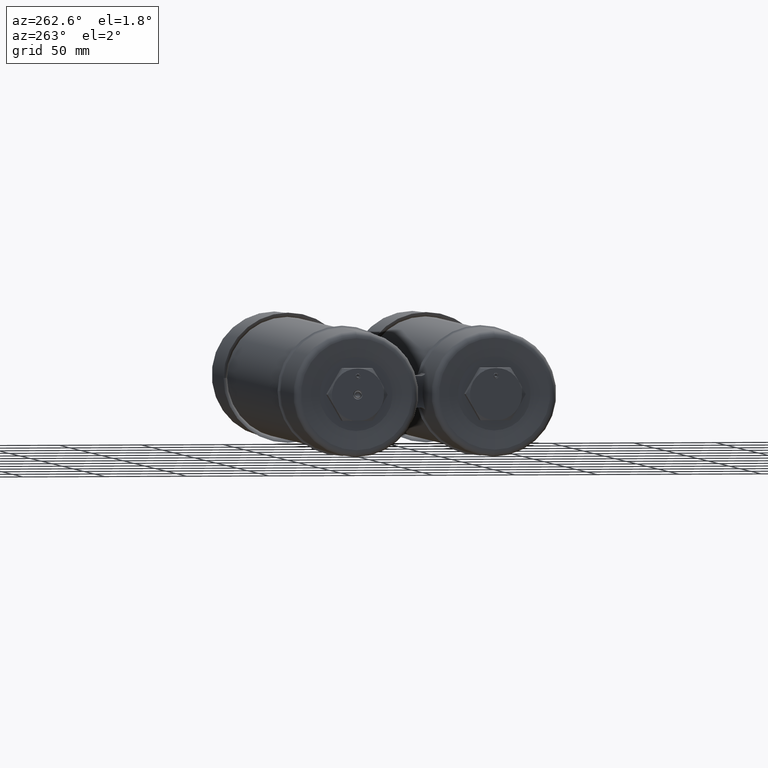
[diagram: clean part render]
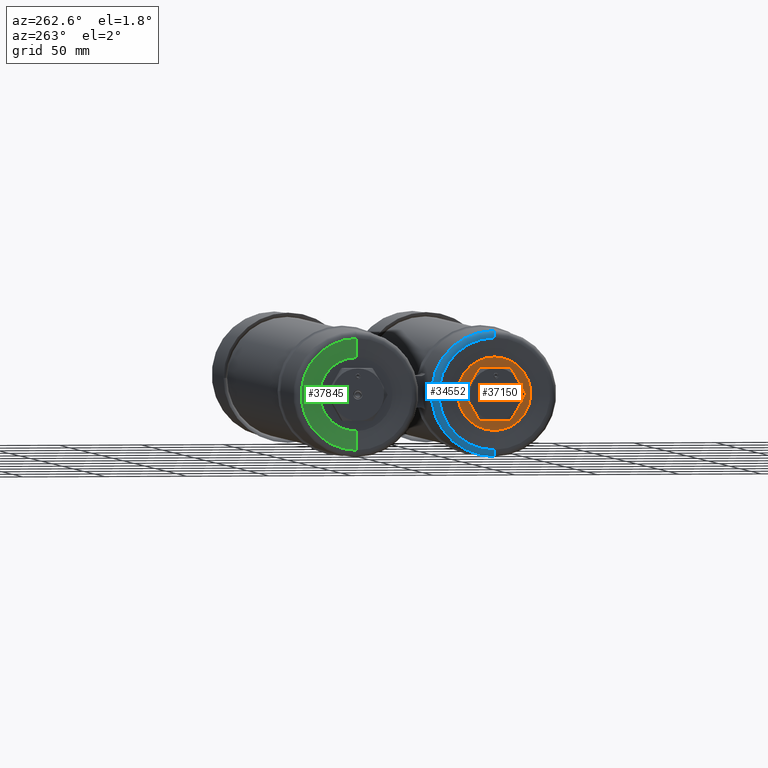
[diagram: same view with three faces highlighted in distinct colors, each labeled with its STEP entity id]
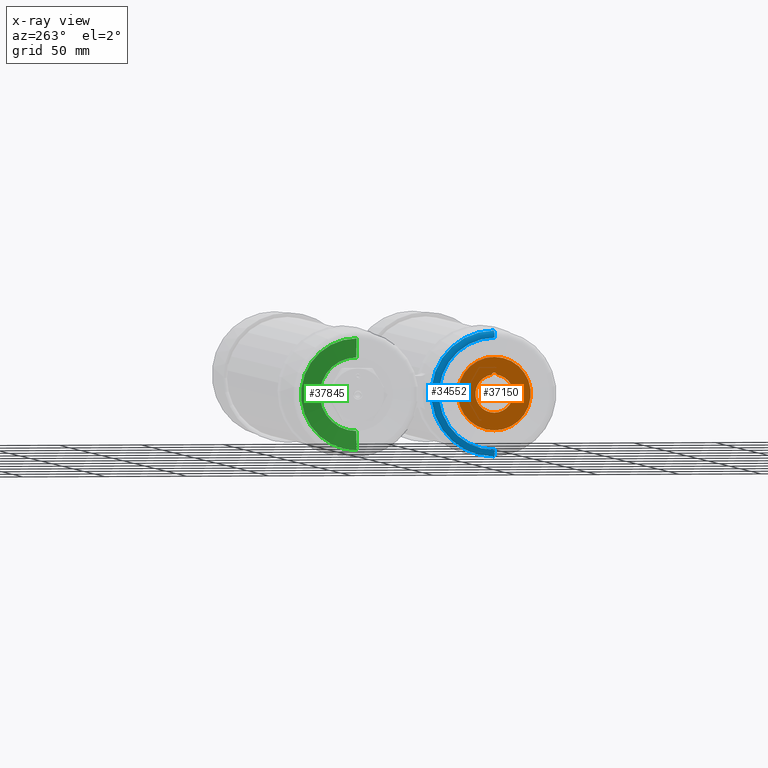
[diagram: x-ray of the same camera — body ghosted, the three highlighted faces saturated]
A machine part, auxiliary view with three faces highlighted in distinct colors.
The next image is the same camera in x-ray (body ghosted, the three faces saturated) — at least one of them is partly hidden behind the body in this view.
Their STEP definitions:

[orange] entity #37150 — the highlighted planar face has unit normal (1, -0, -0).
#51 = AXIS2_PLACEMENT_3D ( 'NONE', #24992, #33401, #21287 ) ;
#517 = VERTEX_POINT ( 'NONE', #3675 ) ;
#2013 = CARTESIAN_POINT ( 'NONE',  ( -0.05699999999999941919, 0.000000000000000000, 3.942786179172893704E-17 ) ) ;
#2242 = DIRECTION ( 'NONE',  ( -1.000000000000000000, 6.121189672418499660E-17, -6.471712124688583364E-16 ) ) ;
#2564 = DIRECTION ( 'NONE',  ( -3.982192582399416937E-16, -2.524022657546259253E-16, -1.000000000000000000 ) ) ;
#3675 = CARTESIAN_POINT ( 'NONE',  ( -0.05699999999999971062, 0.06234008711107200118, 0.4486899971461186798 ) ) ;
#3718 = EDGE_CURVE ( 'NONE', #4006, #24039, #19046, .T. ) ;
#4006 = VERTEX_POINT ( 'NONE', #11821 ) ;
#6320 = DIRECTION ( 'NONE',  ( 4.000205990722671141E-16, 2.524022657546259253E-16, 1.000000000000000000 ) ) ;
#7808 = CARTESIAN_POINT ( 'NONE',  ( -0.05699999999999885714, -1.452352134849160805E-16, -0.8750000000000000000 ) ) ;
#8856 = DIRECTION ( 'NONE',  ( 1.000000000000000000, -6.121189672418525544E-17, -3.982192582399416937E-16 ) ) ;
#9292 = DIRECTION ( 'NONE',  ( -1.000000000000000000, 6.121189672418499660E-17, -6.471712124688583364E-16 ) ) ;
#10919 = AXIS2_PLACEMENT_3D ( 'NONE', #2013, #9292, #6320 ) ;
#10941 = EDGE_CURVE ( 'NONE', #25399, #517, #33810, .T. ) ;
#11015 = EDGE_LOOP ( 'NONE', ( #29969, #28050, #26396 ) ) ;
#11562 = DIRECTION ( 'NONE',  ( -3.957561249099718933E-16, -2.524022657546259253E-16, -1.000000000000000000 ) ) ;
#11821 = CARTESIAN_POINT ( 'NONE',  ( -0.05699999999999907224, 2.208519825352976723E-16, 0.8750000000000000000 ) ) ;
#11892 = ORIENTED_EDGE ( 'NONE', *, *, #27865, .T. ) ;
#13501 = AXIS2_PLACEMENT_3D ( 'NONE', #35283, #8856, #2564 ) ;
#14247 = DIRECTION ( 'NONE',  ( 4.000205990722671141E-16, 2.524022657546259253E-16, 1.000000000000000000 ) ) ;
#16527 = FACE_OUTER_BOUND ( 'NONE', #21181, .T. ) ;
#17681 = CIRCLE ( 'NONE', #32674, 0.4530000000000000138 ) ;
#18148 = EDGE_CURVE ( 'NONE', #517, #21256, #33415, .T. ) ;
#18297 = ORIENTED_EDGE ( 'NONE', *, *, #3718, .T. ) ;
#19046 = CIRCLE ( 'NONE', #10919, 0.8750000000000000000 ) ;
#19781 = DIRECTION ( 'NONE',  ( -1.000000000000000000, 6.121189672418499660E-17, -6.471712124688583364E-16 ) ) ;
#21181 = EDGE_LOOP ( 'NONE', ( #18297, #11892 ) ) ;
#21256 = VERTEX_POINT ( 'NONE', #23886 ) ;
#21287 = DIRECTION ( 'NONE',  ( 6.748636347984840235E-16, -3.552713678800514340E-15, -1.000000000000000000 ) ) ;
#22268 = AXIS2_PLACEMENT_3D ( 'NONE', #38148, #2242, #14247 ) ;
#22885 = CIRCLE ( 'NONE', #22268, 0.8750000000000000000 ) ;
#23886 = CARTESIAN_POINT ( 'NONE',  ( -0.05699999999999912775, -1.159909475983986038E-16, -0.4530000000000000138 ) ) ;
#24039 = VERTEX_POINT ( 'NONE', #7808 ) ;
#24055 = EDGE_CURVE ( 'NONE', #21256, #25399, #17681, .T. ) ;
#24992 = CARTESIAN_POINT ( 'NONE',  ( -0.05699999999999968980, 1.249351415643054734E-17, 0.4380000000000004445 ) ) ;
#25399 = VERTEX_POINT ( 'NONE', #26766 ) ;
#26396 = ORIENTED_EDGE ( 'NONE', *, *, #18148, .F. ) ;
#26766 = CARTESIAN_POINT ( 'NONE',  ( -0.05699999999999971756, -0.06234008711107186240, 0.4486899971461186243 ) ) ;
#27865 = EDGE_CURVE ( 'NONE', #24039, #4006, #22885, .T. ) ;
#28050 = ORIENTED_EDGE ( 'NONE', *, *, #24055, .F. ) ;
#28854 = CARTESIAN_POINT ( 'NONE',  ( -0.05699999999999941919, 0.000000000000000000, 1.189907246392503379E-17 ) ) ;
#29969 = ORIENTED_EDGE ( 'NONE', *, *, #10941, .F. ) ;
#32143 = DIRECTION ( 'NONE',  ( -3.957561249099718933E-16, 1.523954573645631541E-15, -1.000000000000000000 ) ) ;
#32674 = AXIS2_PLACEMENT_3D ( 'NONE', #34620, #19781, #11562 ) ;
#33401 = DIRECTION ( 'NONE',  ( -1.000000000000000000, 6.121189672418499660E-17, -6.471712124688583364E-16 ) ) ;
#33415 = CIRCLE ( 'NONE', #35913, 0.4530000000000000138 ) ;
#33810 = CIRCLE ( 'NONE', #51, 0.06325000000000000067 ) ;
#34129 = FACE_BOUND ( 'NONE', #11015, .T. ) ;
#34482 = DIRECTION ( 'NONE',  ( -1.000000000000000000, 6.121189672418499660E-17, -6.471712124688583364E-16 ) ) ;
#34620 = CARTESIAN_POINT ( 'NONE',  ( -0.05699999999999941919, 0.000000000000000000, 1.189907246392503379E-17 ) ) ;
#35283 = CARTESIAN_POINT ( 'NONE',  ( -0.05699999999999941919, 0.000000000000000000, -0.0007207036880802772730 ) ) ;
#35913 = AXIS2_PLACEMENT_3D ( 'NONE', #28854, #34482, #32143 ) ;
#37094 = PLANE ( 'NONE',  #13501 ) ;
#37150 = ADVANCED_FACE ( 'NONE', ( #34129, #16527 ), #37094, .F. ) ;
#38148 = CARTESIAN_POINT ( 'NONE',  ( -0.05699999999999941919, 0.000000000000000000, 3.942786179172893704E-17 ) ) ;

[blue] entity #34552 — the highlighted toroidal blend (fillet) surface has major radius 33.909 mm and minor (blend) radius 4.1656 mm.
#270 = AXIS2_PLACEMENT_3D ( 'NONE', #29533, #9520, #24010 ) ;
#613 = ORIENTED_EDGE ( 'NONE', *, *, #6653, .F. ) ;
#1964 = CARTESIAN_POINT ( 'NONE',  ( 0.04500000000000105999, 4.822392922838603476E-16, 1.498999999999999222 ) ) ;
#2613 = ORIENTED_EDGE ( 'NONE', *, *, #37735, .F. ) ;
#3196 = VERTEX_POINT ( 'NONE', #10990 ) ;
#5367 = AXIS2_PLACEMENT_3D ( 'NONE', #27333, #29910, #5588 ) ;
#5588 = DIRECTION ( 'NONE',  ( 0.000000000000000000, 3.748669456693618130E-16, 1.000000000000000000 ) ) ;
#6300 = DIRECTION ( 'NONE',  ( -6.121189672418513218E-17, -1.000000000000000000, 2.524022657546260732E-16 ) ) ;
#6653 = EDGE_CURVE ( 'NONE', #3196, #35365, #19158, .T. ) ;
#6965 = EDGE_CURVE ( 'NONE', #10954, #35365, #31663, .T. ) ;
#9520 = DIRECTION ( 'NONE',  ( 1.000000000000000000, -6.121189672418499660E-17, 5.226952353543994727E-16 ) ) ;
#9849 = FACE_OUTER_BOUND ( 'NONE', #38070, .T. ) ;
#10954 = VERTEX_POINT ( 'NONE', #33225 ) ;
#10990 = CARTESIAN_POINT ( 'NONE',  ( 0.04500000000000105999, -3.783509963661842652E-16, -1.498999999999999444 ) ) ;
#12274 = AXIS2_PLACEMENT_3D ( 'NONE', #24434, #30526, #36006 ) ;
#14120 = AXIS2_PLACEMENT_3D ( 'NONE', #18502, #6300, #18325 ) ;
#17251 = CIRCLE ( 'NONE', #14120, 0.1639999999999999514 ) ;
#18325 = DIRECTION ( 'NONE',  ( 0.000000000000000000, -2.524022657546263197E-16, -1.000000000000000000 ) ) ;
#18502 = CARTESIAN_POINT ( 'NONE',  ( 0.04500000000000004691, -3.369570247824256048E-16, -1.334999999999999520 ) ) ;
#19158 = CIRCLE ( 'NONE', #12274, 1.498999999999999444 ) ;
#19470 = DIRECTION ( 'NONE',  ( 1.000000000000000000, -6.121189672418499660E-17, 5.226952353543994727E-16 ) ) ;
#23112 = VERTEX_POINT ( 'NONE', #37980 ) ;
#24010 = DIRECTION ( 'NONE',  ( -5.243715718175788068E-16, -2.524022657546260239E-16, -1.000000000000000000 ) ) ;
#24434 = CARTESIAN_POINT ( 'NONE',  ( 0.04500000000000184408, 0.000000000000000000, 5.749647588897985620E-17 ) ) ;
#25410 = EDGE_CURVE ( 'NONE', #23112, #10954, #38445, .T. ) ;
#27333 = CARTESIAN_POINT ( 'NONE',  ( 0.04500000000000144856, 5.004473724685978697E-16, 1.334999999999999520 ) ) ;
#29533 = CARTESIAN_POINT ( 'NONE',  ( -0.1189999999999989261, 0.000000000000000000, -2.491910555382020607E-17 ) ) ;
#29910 = DIRECTION ( 'NONE',  ( 6.121189672418519381E-17, 1.000000000000000000, -3.748669456693619116E-16 ) ) ;
#30526 = DIRECTION ( 'NONE',  ( 1.000000000000000000, -6.121189672418499660E-17, 5.226952353543994727E-16 ) ) ;
#31394 = AXIS2_PLACEMENT_3D ( 'NONE', #37656, #19470, #33906 ) ;
#31663 = CIRCLE ( 'NONE', #5367, 0.1639999999999999514 ) ;
#32432 = ORIENTED_EDGE ( 'NONE', *, *, #6965, .T. ) ;
#32555 = ORIENTED_EDGE ( 'NONE', *, *, #25410, .T. ) ;
#33225 = CARTESIAN_POINT ( 'NONE',  ( -0.1189999999999996200, 5.362058375448686828E-16, 1.334999999999999520 ) ) ;
#33906 = DIRECTION ( 'NONE',  ( 5.226952353543993741E-16, -2.524022657546260732E-16, -1.000000000000000000 ) ) ;
#34552 = ADVANCED_FACE ( 'NONE', ( #9849 ), #37677, .T. ) ;
#35365 = VERTEX_POINT ( 'NONE', #1964 ) ;
#36006 = DIRECTION ( 'NONE',  ( -5.239535011197304928E-16, -2.524022657546260239E-16, -1.000000000000000000 ) ) ;
#37656 = CARTESIAN_POINT ( 'NONE',  ( 0.04500000000000074774, 0.000000000000000000, 5.749647588897888245E-17 ) ) ;
#37677 = TOROIDAL_SURFACE ( 'NONE', #31394, 1.334999999999999520, 0.1640000000000000069 ) ;
#37735 = EDGE_CURVE ( 'NONE', #23112, #3196, #17251, .T. ) ;
#37980 = CARTESIAN_POINT ( 'NONE',  ( -0.1189999999999996200, -3.369570247824256048E-16, -1.334999999999999520 ) ) ;
#38070 = EDGE_LOOP ( 'NONE', ( #32555, #32432, #613, #2613 ) ) ;
#38445 = CIRCLE ( 'NONE', #270, 1.334999999999999520 ) ;

[green] entity #37845 — the highlighted conical surface has half-angle 82.262 deg.
#144 = EDGE_CURVE ( 'NONE', #35381, #25386, #20057, .T. ) ;
#1005 = DIRECTION ( 'NONE',  ( 3.975917728147737379E-16, 4.104173138733147975E-16, 1.000000000000000000 ) ) ;
#2357 = AXIS2_PLACEMENT_3D ( 'NONE', #27141, #32458, #38536 ) ;
#3829 = ORIENTED_EDGE ( 'NONE', *, *, #14937, .T. ) ;
#4315 = DIRECTION ( 'NONE',  ( -1.000000000000000000, 6.121189672418499660E-17, -6.471712124688583364E-16 ) ) ;
#7200 = CIRCLE ( 'NONE', #15363, 0.8750000000000000000 ) ;
#8164 = LINE ( 'NONE', #29155, #38114 ) ;
#8819 = ORIENTED_EDGE ( 'NONE', *, *, #144, .F. ) ;
#12188 = ORIENTED_EDGE ( 'NONE', *, *, #37766, .F. ) ;
#14937 = EDGE_CURVE ( 'NONE', #21209, #25386, #21175, .T. ) ;
#15363 = AXIS2_PLACEMENT_3D ( 'NONE', #24531, #35706, #30429 ) ;
#15489 = EDGE_CURVE ( 'NONE', #33044, #21209, #8164, .T. ) ;
#17906 = AXIS2_PLACEMENT_3D ( 'NONE', #24344, #4315, #1005 ) ;
#20057 = LINE ( 'NONE', #26314, #21100 ) ;
#21041 = FACE_OUTER_BOUND ( 'NONE', #25764, .T. ) ;
#21100 = VECTOR ( 'NONE', #31985, 39.37007874015748854 ) ;
#21175 = CIRCLE ( 'NONE', #2357, 1.331253775764106084 ) ;
#21209 = VERTEX_POINT ( 'NONE', #28233 ) ;
#23624 = CARTESIAN_POINT ( 'NONE',  ( -0.1189999999999998559, 3.311999999999965638, -1.331253775764126068 ) ) ;
#24344 = CARTESIAN_POINT ( 'NONE',  ( -0.1190000000000147606, 3.311999999999965638, -3.582865632714736948E-14 ) ) ;
#24531 = CARTESIAN_POINT ( 'NONE',  ( -0.05700000000000105677, 3.311999999999965638, -3.578853171197429704E-14 ) ) ;
#25386 = VERTEX_POINT ( 'NONE', #23624 ) ;
#25764 = EDGE_LOOP ( 'NONE', ( #8819, #12188, #31400, #3829 ) ) ;
#26314 = CARTESIAN_POINT ( 'NONE',  ( -0.1190000000000153019, 3.311999999999965638, -1.331253775764239755 ) ) ;
#27141 = CARTESIAN_POINT ( 'NONE',  ( -0.1190000000000005637, 3.311999999999964750, -3.582865632714736317E-14 ) ) ;
#28233 = CARTESIAN_POINT ( 'NONE',  ( -0.1190000000000012575, 3.311999999999966082, 1.331253775764072556 ) ) ;
#29155 = CARTESIAN_POINT ( 'NONE',  ( -0.1190000000000142333, 3.311999999999966082, 1.331253775764168035 ) ) ;
#30429 = DIRECTION ( 'NONE',  ( 4.000205990722671141E-16, 0.000000000000000000, 1.000000000000000000 ) ) ;
#31400 = ORIENTED_EDGE ( 'NONE', *, *, #15489, .T. ) ;
#31985 = DIRECTION ( 'NONE',  ( -0.1346517406867311917, -1.205119539180133243E-16, -0.9908929855085427674 ) ) ;
#32458 = DIRECTION ( 'NONE',  ( -1.000000000000000000, 6.121189672418499660E-17, -5.226952353543994727E-16 ) ) ;
#33044 = VERTEX_POINT ( 'NONE', #37599 ) ;
#34486 = CARTESIAN_POINT ( 'NONE',  ( -0.05700000000000049472, 3.311999999999965638, -0.8750000000000357492 ) ) ;
#34724 = CONICAL_SURFACE ( 'NONE', #17906, 1.331253775764203784, 1.435734332793960899 ) ;
#35363 = DIRECTION ( 'NONE',  ( -0.1346517406867304700, 2.583459231073698873E-16, 0.9908929855085429894 ) ) ;
#35381 = VERTEX_POINT ( 'NONE', #34486 ) ;
#35706 = DIRECTION ( 'NONE',  ( -1.000000000000000000, 6.121189672418499660E-17, -6.471712124688583364E-16 ) ) ;
#37599 = CARTESIAN_POINT ( 'NONE',  ( -0.05700000000000070982, 3.311999999999965638, 0.8749999999999641398 ) ) ;
#37766 = EDGE_CURVE ( 'NONE', #33044, #35381, #7200, .T. ) ;
#37845 = ADVANCED_FACE ( 'NONE', ( #21041 ), #34724, .F. ) ;
#38114 = VECTOR ( 'NONE', #35363, 39.37007874015748854 ) ;
#38536 = DIRECTION ( 'NONE',  ( 6.412770529271014255E-17, -1.000000000000000000, -2.524022657546235094E-16 ) ) ;